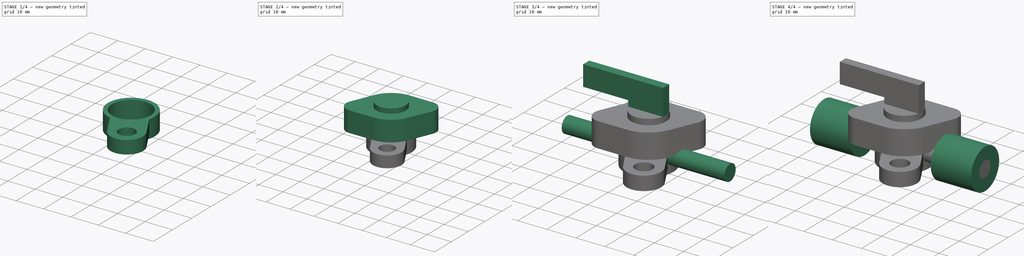
[diagram: build sequence overview — one tinted view per stage of 4, left to right]
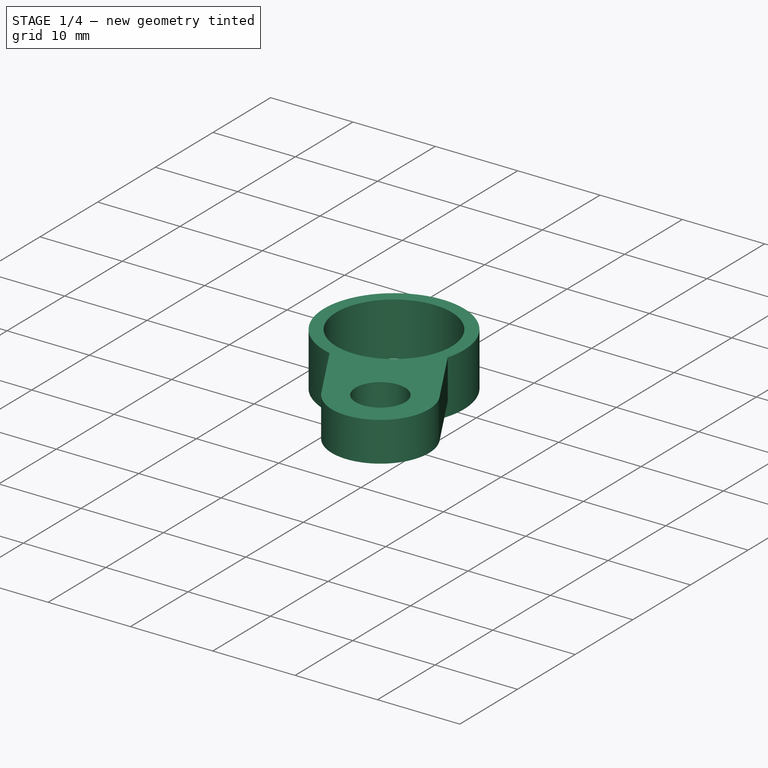
[diagram: stage 1 of 4 — iso view after this stage's code; geometry added in this stage tinted green]
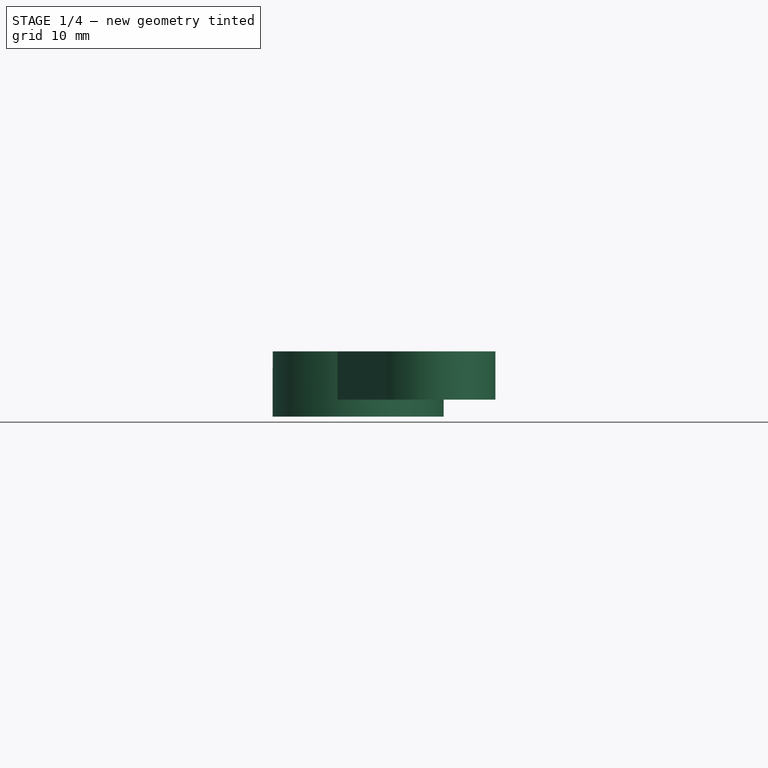
[diagram: stage 1 of 4 — front view after this stage's code; geometry added in this stage tinted green]
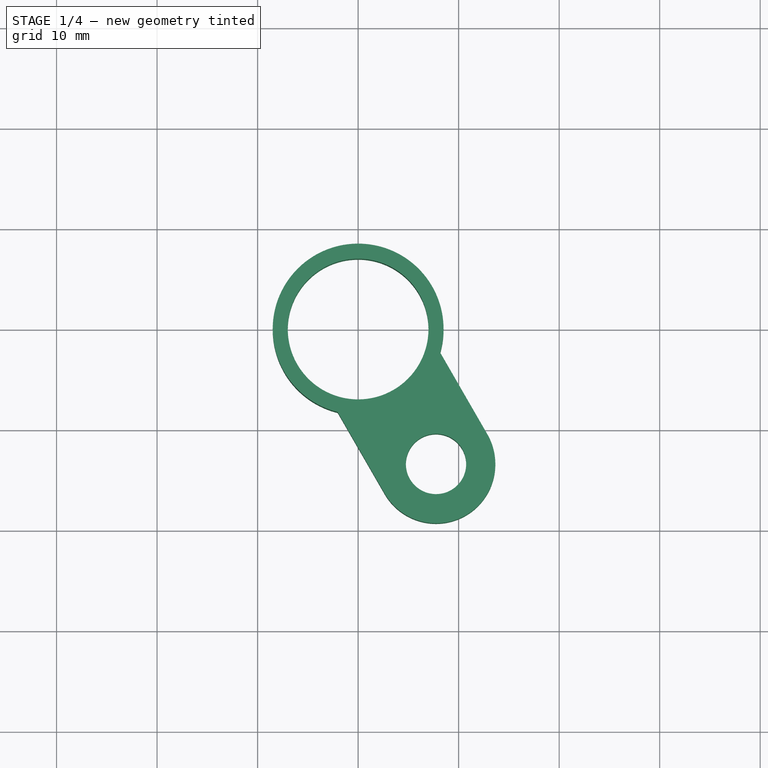
[diagram: stage 1 of 4 — top view after this stage's code; geometry added in this stage tinted green]
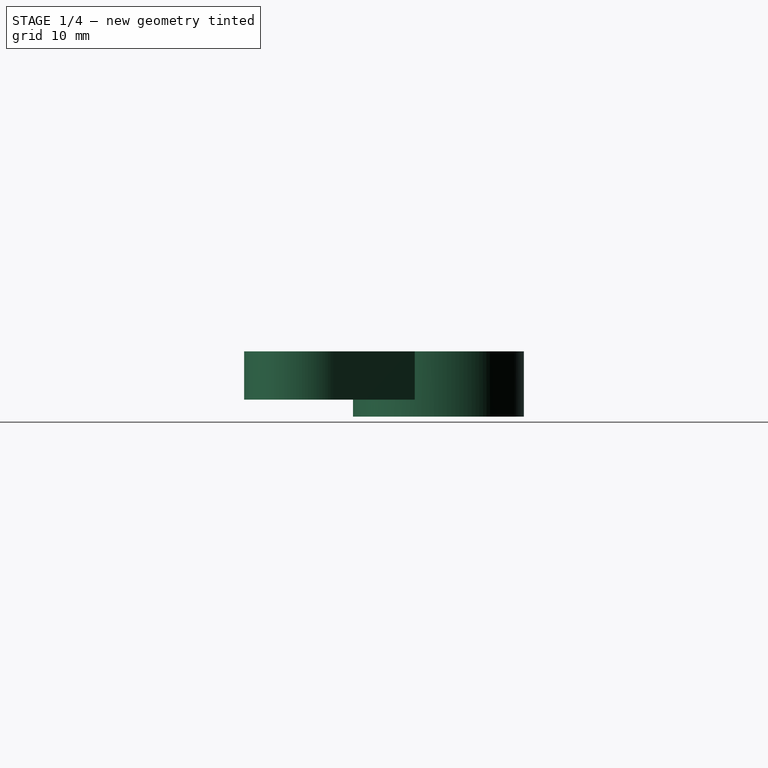
[diagram: stage 1 of 4 — right view after this stage's code; geometry added in this stage tinted green]
FCSTD DOCUMENT  (FreeCAD 0.19R24276 (Git))
Label: Ventil
License: All rights reserved
LicenseURL: http://en.wikipedia.org/wiki/All_rights_reserved
objects: Sketcher::SketchObject×9, PartDesign::Pad×9, PartDesign::Body×1
note: 28 computed .brp shape members not serialized (recipe doc carries the construction recipe); baked Part::Feature solids carry a one-line shape summary decoded from their .brp

FEATURE [Sketcher::SketchObject] Sketch
  FullyConstrained = false
  MapMode = 5
  Support = -> [XY_Plane]
  sketch-geometry (8):
    g0: LineSegment StartX=-32.5899 StartY=10.75 StartZ=0 EndX=34.986 EndY=10.75 EndZ=0
    g1: LineSegment StartX=34.986 StartY=10.75 StartZ=0 EndX=34.986 EndY=-10.75 EndZ=0
    g2: LineSegment StartX=34.986 StartY=-10.75 StartZ=0 EndX=-32.5899 EndY=-10.75 EndZ=0
    g3: LineSegment StartX=-32.5899 StartY=-10.75 StartZ=0 EndX=-32.5899 EndY=10.75 EndZ=0
    g4: LineSegment StartX=0 StartY=0 StartZ=0 EndX=-32.5899 EndY=0 EndZ=0
    g5: LineSegment StartX=0 StartY=0 StartZ=0 EndX=17.753 EndY=-30.749 EndZ=0
    g6: Circle CenterX=0 CenterY=0 CenterZ=0 NormalX=0 NormalY=0 NormalZ=1 AngleXU=0 Radius=8.5
    g7: Circle CenterX=0 CenterY=0 CenterZ=0 NormalX=0 NormalY=0 NormalZ=1 AngleXU=0 Radius=7
  constraints (18):
    c: Coincident(g0,g1)
    c: Coincident(g1,g2)
    c: Coincident(g2,g3)
    c: Coincident(g3,g0)
    c: Horizontal(g0)
    c: Horizontal(g2)
    c: Vertical(g1)
    c: Vertical(g3)
    c: Coincident(g4,g-1)
    c: PointOnObject(g4,g-1)
    c: DistanceY(g2,g0) = 21.5
    c: Symmetric(g2,g0,g4)
    c: Coincident(g5,g-1)
    c: Angle(g5,g-1) = 1.0472
    c: Coincident(g6,g-1)
    c: Diameter(g6) = 17
    c: Coincident(g7,g6)
    c: Diameter(g7) = 14
FEATURE [PartDesign::Pad] Pad
  Direction = (1,1,1)
  Length = 6.5
  Length2 = 100
  Profile = -> Sketch
  Type = 0
FEATURE [Sketcher::SketchObject] Sketch001
  FullyConstrained = true
  MapMode = 5
  Placement = pos=(0,0,6.5) rot=(0,0,1;0rad)
  Support = -> [Pad]
  sketch-geometry (6):
    g0: LineSegment StartX=0 StartY=0 StartZ=0 EndX=7.75 EndY=-13.4234 EndZ=0
    g1: Circle CenterX=7.75 CenterY=-13.4234 CenterZ=0 NormalX=0 NormalY=0 NormalZ=1 AngleXU=0 Radius=3
    g2: ArcOfCircle CenterX=7.75 CenterY=-13.4234 CenterZ=0 NormalX=0 NormalY=0 NormalZ=1 AngleXU=0 Radius=5.9 StartAngle=3.66519 EndAngle=6.80678
    g3: LineSegment StartX=2.64045 StartY=-16.3734 StartZ=0 EndX=-2.05014 EndY=-8.24906 EndZ=0
    g4: LineSegment StartX=12.8595 StartY=-10.4734 StartZ=0 EndX=8.16896 EndY=-2.34906 EndZ=0
    g5: ArcOfCircle CenterX=0 CenterY=0 CenterZ=0 NormalX=0 NormalY=0 NormalZ=1 AngleXU=0 Radius=8.5 StartAngle=4.46879 EndAngle=6.00318
  constraints (15):
    c: Coincident(g0,g-1)
    c: Angle(g0,g-1) = 1.0472
    c: Distance(g0) = 15.5
    c: Coincident(g1,g0)
    c: Diameter(g1) = 6
    c: Coincident(g2,g1)
    c: Diameter(g2) = 11.8
    c: Parallel(g3,g0)
    c: Parallel(g0,g4)
    c: Tangent(g2,g3) = 1.5708
    c: Tangent(g2,g4) = -1.5708
    c: Coincident(g5,g-1)
    c: Diameter(g5) = 17
    c: Coincident(g4,g5)
    c: Coincident(g3,g5)
FEATURE [PartDesign::Pad] Pad001
  BaseFeature = -> Pad
  Direction = (1,1,1)
  Length = 4.8
  Length2 = 100
  Profile = -> Sketch001
  Reversed = true
  Type = 0
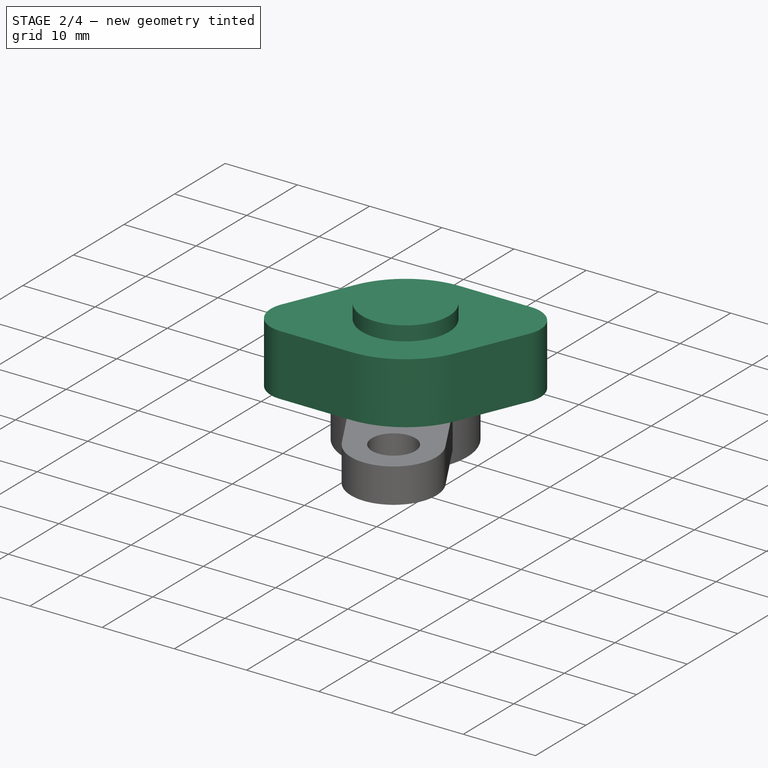
[diagram: stage 2 of 4 — iso view after this stage's code; geometry added in this stage tinted green]
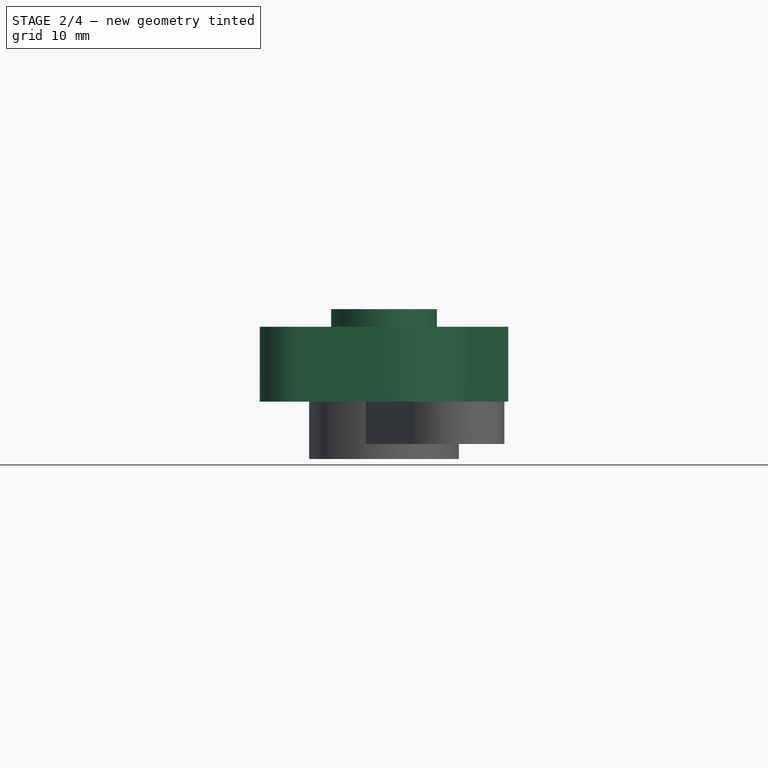
[diagram: stage 2 of 4 — front view after this stage's code; geometry added in this stage tinted green]
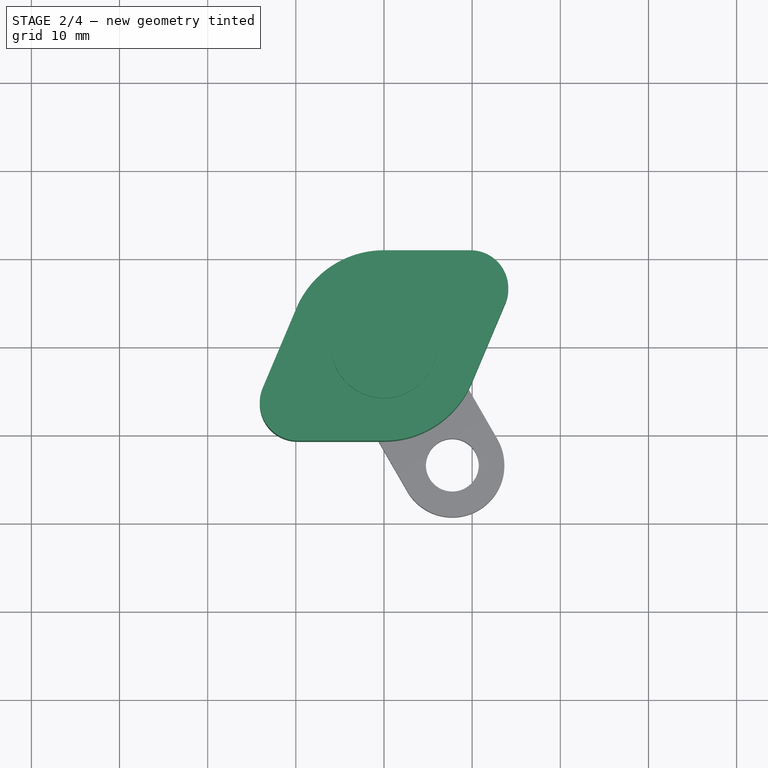
[diagram: stage 2 of 4 — top view after this stage's code; geometry added in this stage tinted green]
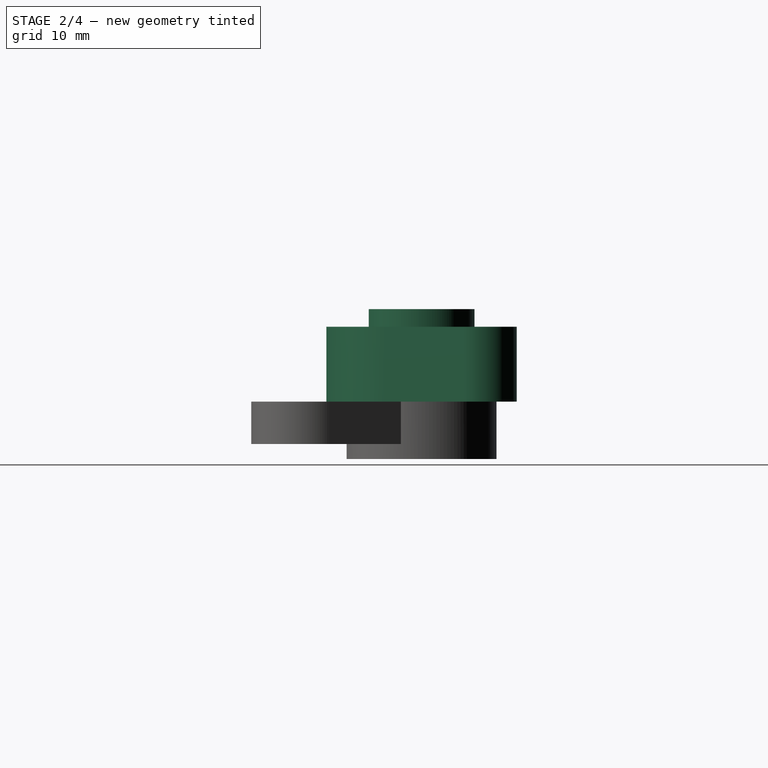
[diagram: stage 2 of 4 — right view after this stage's code; geometry added in this stage tinted green]
FEATURE [Sketcher::SketchObject] Sketch002
  FullyConstrained = false
  MapMode = 5
  Placement = pos=(0,0,6.5) rot=(0,0,1;0rad)
  Support = -> [Pad001]
  sketch-geometry (22):
    g0: LineSegment StartX=-15.0552 StartY=3.5 StartZ=0 EndX=30.8187 EndY=3.5 EndZ=0
    g1: LineSegment StartX=-26.6641 StartY=-3.5 StartZ=0 EndX=3.01353 EndY=-3.5 EndZ=0
    g2: LineSegment StartX=0 StartY=10.8 StartZ=0 EndX=9.8 EndY=10.8 EndZ=0
    g3: LineSegment StartX=0 StartY=0 StartZ=0 EndX=-13 EndY=0 EndZ=0
    g4: LineSegment StartX=0 StartY=0 StartZ=0 EndX=0 EndY=13.2768 EndZ=0
    g5: ArcOfCircle CenterX=0 CenterY=0 CenterZ=0 NormalX=0 NormalY=0 NormalZ=1 AngleXU=0 Radius=10.8 StartAngle=4.71239 EndAngle=5.88368
    g6: LineSegment StartX=-9.8 StartY=6.5 StartZ=0 EndX=9.8 EndY=6.5 EndZ=0
    g7: LineSegment StartX=9.8 StartY=6.5 StartZ=0 EndX=9.8 EndY=-6.5 EndZ=0
    g8: LineSegment StartX=9.8 StartY=-6.5 StartZ=0 EndX=-9.8 EndY=-6.5 EndZ=0
    g9: LineSegment StartX=-9.8 StartY=-6.5 StartZ=0 EndX=-9.8 EndY=6.5 EndZ=0
    g10: LineSegment StartX=9.8 StartY=6.5 StartZ=0 EndX=13.7614 EndY=4.82745 EndZ=0
    g11: LineSegment StartX=9.8 StartY=6.5 StartZ=0 EndX=9.8 EndY=10.8 EndZ=0
    g12: LineSegment StartX=-13.7614 StartY=-4.82745 StartZ=0 EndX=-9.8 EndY=-6.5 EndZ=0
    g13: LineSegment StartX=-2e-15 StartY=0 StartZ=0 EndX=-2e-15 EndY=-10.8 EndZ=0
    g14: ArcOfCircle CenterX=9.8 CenterY=6.5 CenterZ=0 NormalX=0 NormalY=0 NormalZ=1 AngleXU=0 Radius=4.3 StartAngle=5.88368 EndAngle=7.85398
    g15: ArcOfCircle CenterX=0 CenterY=0 CenterZ=0 NormalX=0 NormalY=0 NormalZ=1 AngleXU=0 Radius=10.8 StartAngle=1.5708 EndAngle=2.74208
    g16: LineSegment StartX=9.94953 StartY=-4.20082 StartZ=0 EndX=13.7614 EndY=4.82745 EndZ=0
    g17: LineSegment StartX=-9.8 StartY=-6.5 StartZ=0 EndX=-9.8 EndY=-10.8 EndZ=0
    g18: LineSegment StartX=-9.94953 StartY=4.20082 StartZ=0 EndX=-13.7614 EndY=-4.82745 EndZ=0
    g19: LineSegment StartX=0 StartY=0 StartZ=0 EndX=-9.94953 EndY=4.20082 EndZ=0
    g20: ArcOfCircle CenterX=-9.8 CenterY=-6.5 CenterZ=0 NormalX=0 NormalY=0 NormalZ=1 AngleXU=0 Radius=4.3 StartAngle=2.74208 EndAngle=4.71239
    g21: LineSegment StartX=-2e-15 StartY=-10.8 StartZ=0 EndX=-9.8 EndY=-10.8 EndZ=0
  constraints (54):
    c: Horizontal(g0)
    c: Horizontal(g1)
    c: DistanceY(g-1,g0) = 3.5
    c: DistanceY(g1,g-1) = 3.5
    c: Horizontal(g2)
    c: Coincident(g3,g-1)
    c: PointOnObject(g3,g-1)
    c: Coincident(g4,g-1)
    c: PointOnObject(g4,g-2)
    c: Coincident(g5,g-1)
    c: Diameter(g5) = 21.6
    c: Coincident(g6,g7)
    c: Coincident(g7,g8)
    c: Coincident(g8,g9)
    c: Coincident(g9,g6)
    c: Horizontal(g6)
    c: Horizontal(g8)
    c: Vertical(g7)
    c: Vertical(g9)
    c: Symmetric(g6,g7,g-1)
    c: DistanceX(g8,g8) = 19.6
    c: Coincident(g10,g6)
    c: Coincident(g11,g6)
    c: Coincident(g11,g2)
    c: Vertical(g11)
    c: Coincident(g12,g8)
    c: Coincident(g13,g-1)
    c: Vertical(g13)
    c: Coincident(g14,g2)
    c: Equal(g5,g15)
    c: Coincident(g5,g15)
    c: Coincident(g14,g6)
    c: Diameter(g14) = 8.6
    c: Coincident(g10,g14)
    c: Coincident(g16,g5)
    c: Coincident(g16,g14)
    c: Perpendicular(g10,g16)
    c: Coincident(g17,g8)
    c: Vertical(g17)
    c: DistanceY(g17,g17) = 4.3
    c: Coincident(g18,g12)
    c: Coincident(g19,g5)
    c: Coincident(g19,g18)
    c: Perpendicular(g19,g18)
    c: Coincident(g15,g18)
    c: Tangent(g20,g18) = -1.5708
    c: PointOnObject(g15,g2)
    c: PointOnObject(g2,g4)
    c: Coincident(g5,g13)
    c: Coincident(g21,g5)
    c: Coincident(g21,g20)
    c: Horizontal(g21)
    c: Coincident(g18,g20)
    c: Coincident(g20,g8)
FEATURE [PartDesign::Pad] Pad002
  BaseFeature = -> Pad001
  Direction = (1,1,1)
  Length = 8.5
  Length2 = 100
  Profile = -> Sketch002
  Type = 0
FEATURE [Sketcher::SketchObject] Sketch003
  FullyConstrained = true
  MapMode = 5
  Placement = pos=(0,0,15) rot=(0,0,1;0rad)
  Support = -> [Pad002]
  sketch-geometry (1):
    g0: Circle CenterX=0 CenterY=0 CenterZ=0 NormalX=0 NormalY=0 NormalZ=1 AngleXU=0 Radius=6
  constraints (2):
    c: Coincident(g0,g-1)
    c: Diameter(g0) = 12
FEATURE [PartDesign::Pad] Pad003
  BaseFeature = -> Pad002
  Direction = (1,1,1)
  Length = 2
  Length2 = 100
  Profile = -> Sketch003
  Type = 0
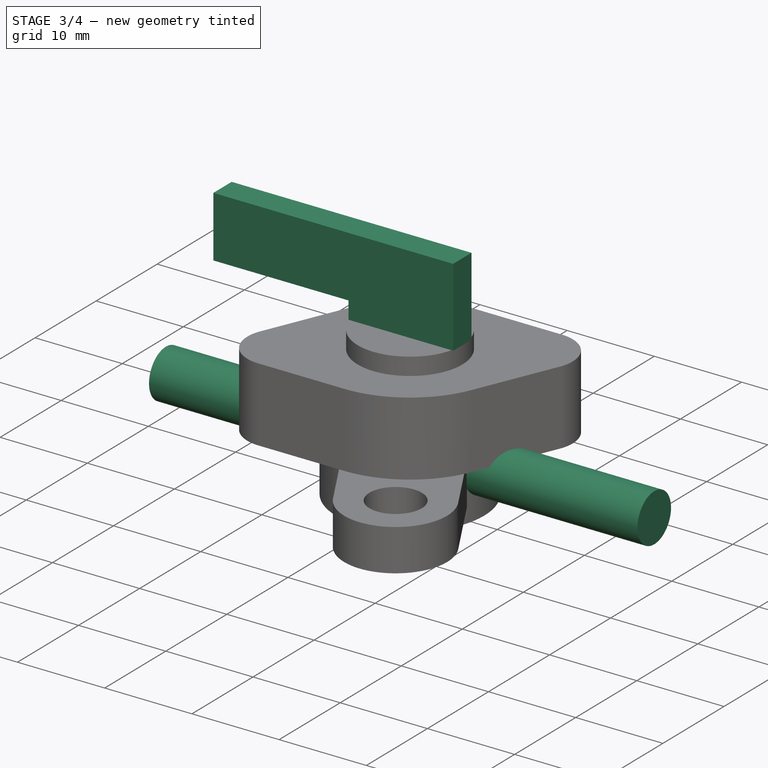
[diagram: stage 3 of 4 — iso view after this stage's code; geometry added in this stage tinted green]
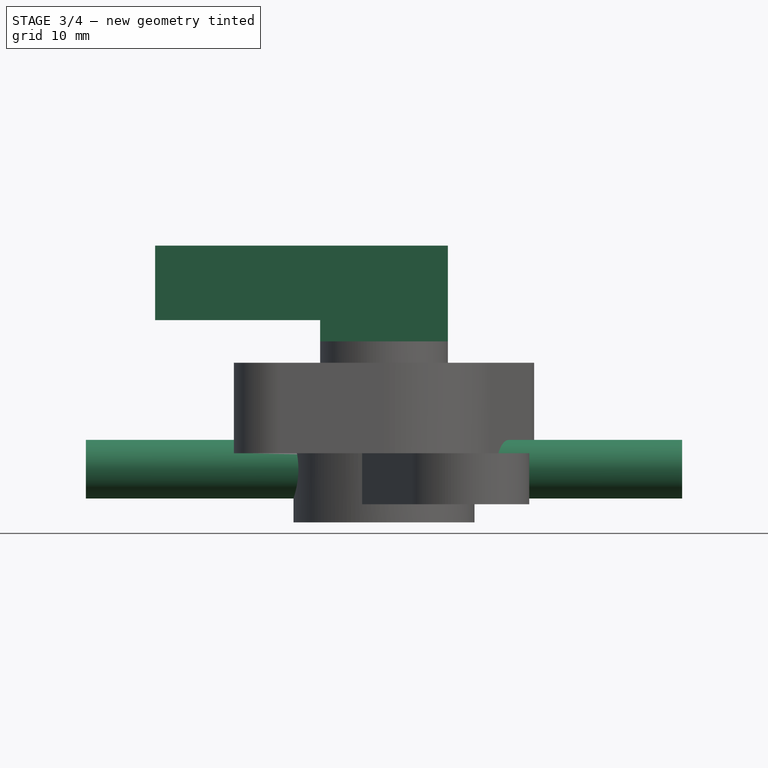
[diagram: stage 3 of 4 — front view after this stage's code; geometry added in this stage tinted green]
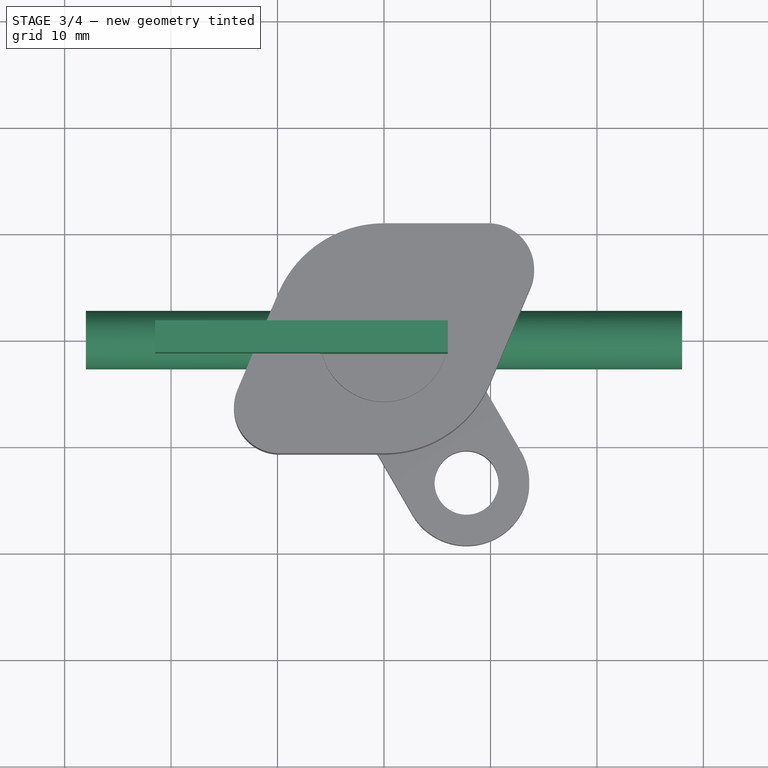
[diagram: stage 3 of 4 — top view after this stage's code; geometry added in this stage tinted green]
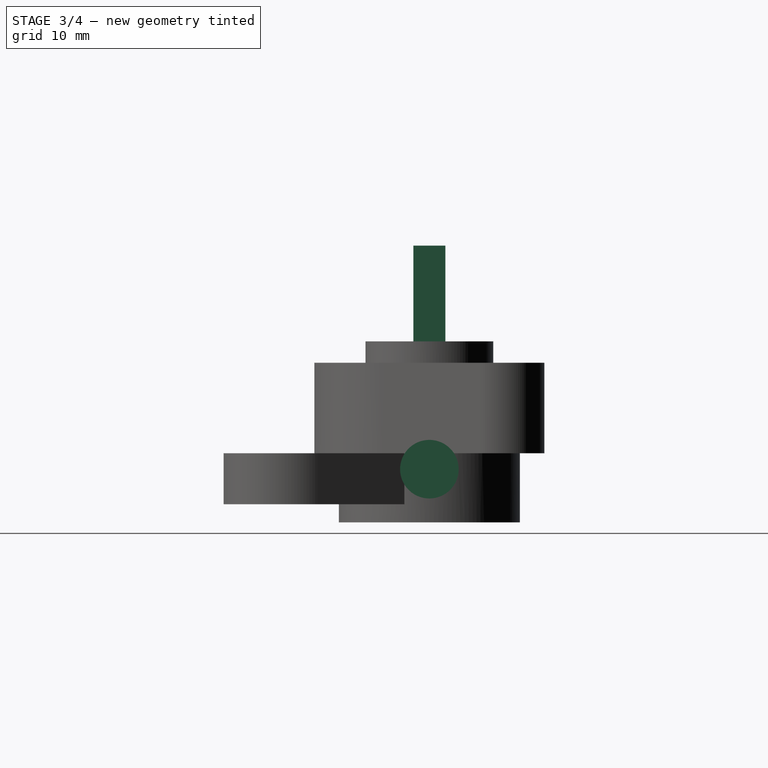
[diagram: stage 3 of 4 — right view after this stage's code; geometry added in this stage tinted green]
FEATURE [Sketcher::SketchObject] Sketch004
  FullyConstrained = true
  MapMode = 5
  Placement = pos=(0,0,17) rot=(0,0,1;0rad)
  Support = -> [Pad003]
  sketch-geometry (4):
    g0: LineSegment StartX=-6 StartY=1.5 StartZ=0 EndX=6 EndY=1.5 EndZ=0
    g1: LineSegment StartX=6 StartY=1.5 StartZ=0 EndX=6 EndY=-1.5 EndZ=0
    g2: LineSegment StartX=6 StartY=-1.5 StartZ=0 EndX=-6 EndY=-1.5 EndZ=0
    g3: LineSegment StartX=-6 StartY=-1.5 StartZ=0 EndX=-6 EndY=1.5 EndZ=0
  constraints (11):
    c: Coincident(g0,g1)
    c: Coincident(g1,g2)
    c: Coincident(g2,g3)
    c: Coincident(g3,g0)
    c: Horizontal(g0)
    c: Horizontal(g2)
    c: Vertical(g1)
    c: Vertical(g3)
    c: DistanceY(g3,g3) = 3
    c: Symmetric(g0,g1,g-1)
    c: DistanceX(g2,g2) = 12
FEATURE [PartDesign::Pad] Pad004
  BaseFeature = -> Pad003
  Direction = (1,1,1)
  Length = 2
  Length2 = 100
  Profile = -> Sketch004
  Type = 0
FEATURE [Sketcher::SketchObject] Sketch005
  FullyConstrained = true
  MapMode = 5
  Placement = pos=(0,0,19) rot=(0,0,1;0rad)
  Support = -> [Pad004]
  sketch-geometry (5):
    g0: LineSegment StartX=-21.5 StartY=1.5 StartZ=0 EndX=6 EndY=1.5 EndZ=0
    g1: LineSegment StartX=6 StartY=1.5 StartZ=0 EndX=6 EndY=-1.5 EndZ=0
    g2: LineSegment StartX=6 StartY=-1.5 StartZ=0 EndX=-21.5 EndY=-1.5 EndZ=0
    g3: LineSegment StartX=-21.5 StartY=-1.5 StartZ=0 EndX=-21.5 EndY=1.5 EndZ=0
    g4: LineSegment StartX=0 StartY=0 StartZ=0 EndX=6 EndY=0 EndZ=0
  constraints (14):
    c: Coincident(g0,g1)
    c: Coincident(g1,g2)
    c: Coincident(g2,g3)
    c: Coincident(g3,g0)
    c: Horizontal(g0)
    c: Horizontal(g2)
    c: Vertical(g1)
    c: Vertical(g3)
    c: Coincident(g4,g-1)
    c: PointOnObject(g4,g-1)
    c: Symmetric(g0,g1,g4)
    c: DistanceX(g-1,g1) = 6
    c: DistanceX(g2,g1) = 27.5
    c: DistanceY(g3,g3) = 3
FEATURE [PartDesign::Pad] Pad005
  BaseFeature = -> Pad004
  Direction = (1,1,1)
  Length = 7
  Length2 = 100
  Profile = -> Sketch005
  Type = 0
FEATURE [Sketcher::SketchObject] Sketch006
  FullyConstrained = true
  MapMode = 5
  Placement = pos=(0,0,0) rot=(0.57735,0.57735,0.57735;2.0944rad)
  Support = -> [YZ_Plane]
  sketch-geometry (1):
    g0: Circle CenterX=0 CenterY=5 CenterZ=0 NormalX=0 NormalY=0 NormalZ=1 AngleXU=0 Radius=2.75
  constraints (3):
    c: PointOnObject(g0,g-2)
    c: Diameter(g0) = 5.5
    c: DistanceY(g-1,g0) = 5
FEATURE [PartDesign::Pad] Pad006
  BaseFeature = -> Pad005
  Direction = (1,1,1)
  Length = 56
  Length2 = 100
  Midplane = true
  Profile = -> Sketch006
  Type = 0
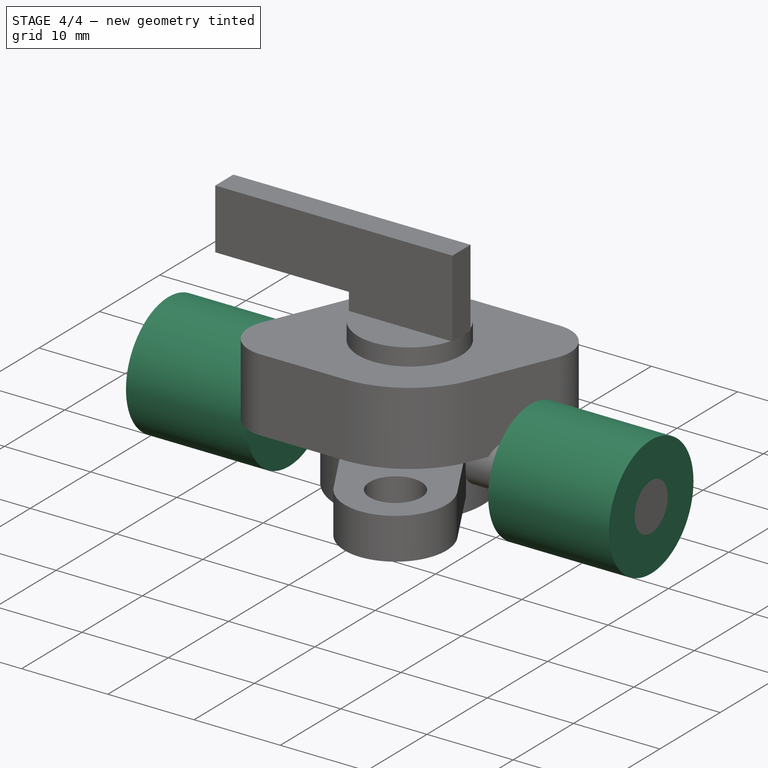
[diagram: stage 4 of 4 — iso view after this stage's code; geometry added in this stage tinted green]
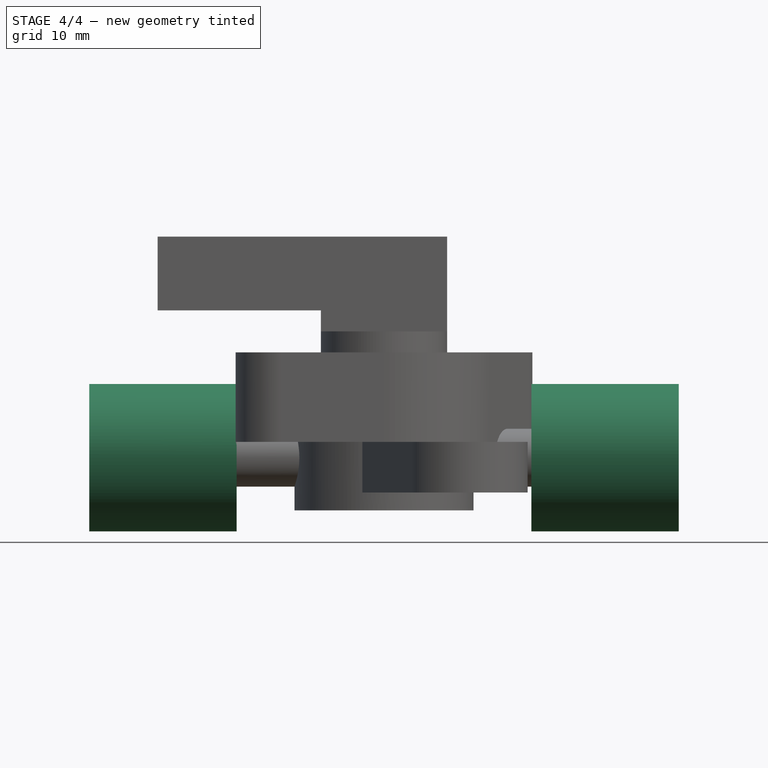
[diagram: stage 4 of 4 — front view after this stage's code; geometry added in this stage tinted green]
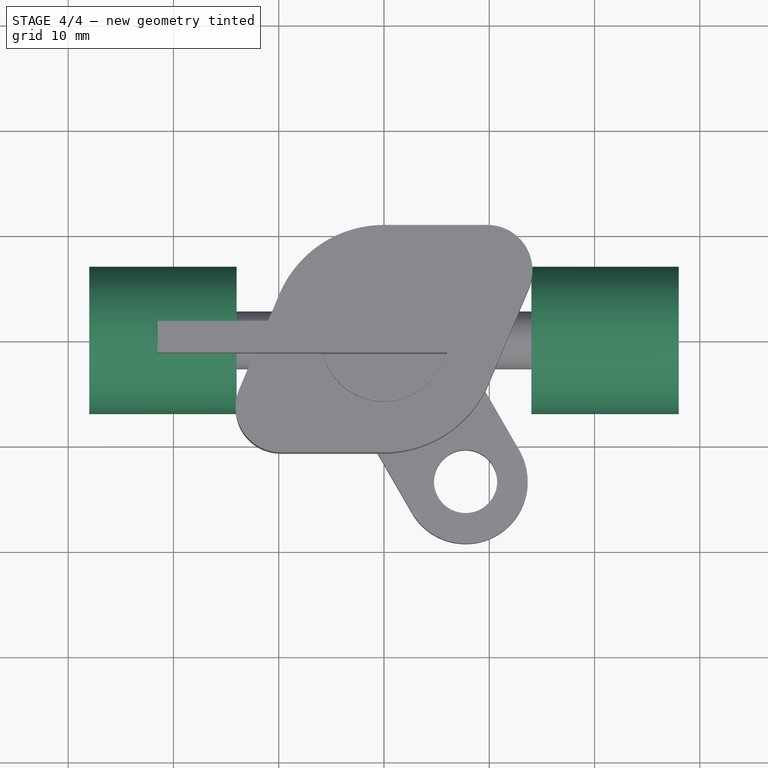
[diagram: stage 4 of 4 — top view after this stage's code; geometry added in this stage tinted green]
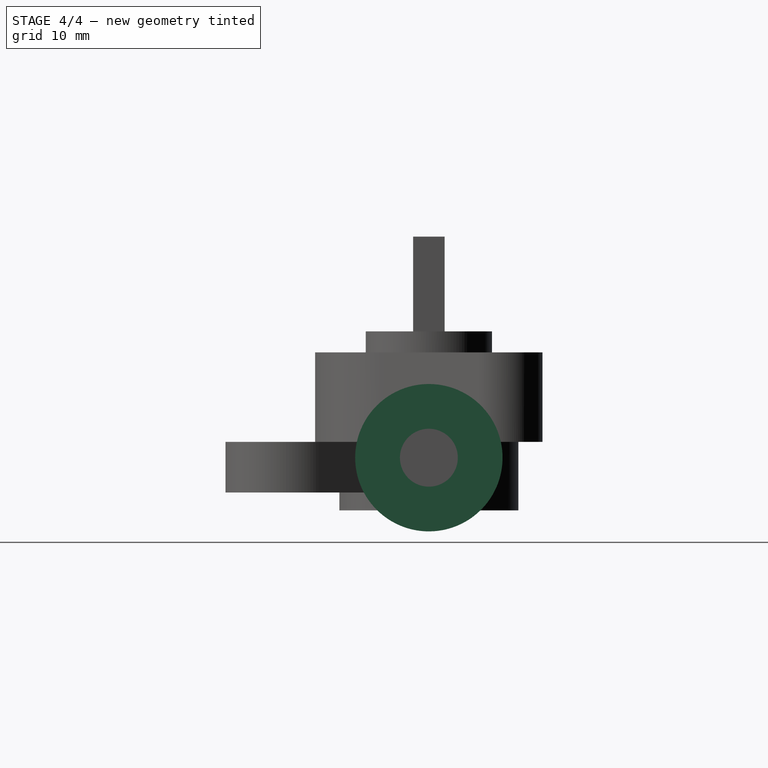
[diagram: stage 4 of 4 — right view after this stage's code; geometry added in this stage tinted green]
FEATURE [Sketcher::SketchObject] Sketch007
  FullyConstrained = true
  MapMode = 5
  Placement = pos=(28,-6.2e-15,6.2e-15) rot=(0.57735,0.57735,0.57735;2.0944rad)
  Support = -> [Pad006]
  sketch-geometry (1):
    g0: Circle CenterX=0 CenterY=5 CenterZ=0 NormalX=0 NormalY=0 NormalZ=1 AngleXU=0 Radius=7
  constraints (3):
    c: PointOnObject(g0,g-2)
    c: DistanceY(g-1,g0) = 5
    c: Diameter(g0) = 14
FEATURE [PartDesign::Pad] Pad007
  BaseFeature = -> Pad006
  Direction = (1,1,1)
  Length = 14
  Length2 = 100
  Profile = -> Sketch007
  Reversed = true
  Type = 0
FEATURE [Sketcher::SketchObject] Sketch008
  FullyConstrained = true
  MapMode = 5
  Placement = pos=(-28,6.2e-15,-6.2e-15) rot=(-0.57735,0.57735,0.57735;4.18879rad)
  Support = -> [Pad007]
  sketch-geometry (1):
    g0: Circle CenterX=0 CenterY=5 CenterZ=0 NormalX=0 NormalY=0 NormalZ=1 AngleXU=0 Radius=7
  constraints (3):
    c: PointOnObject(g0,g-2)
    c: Diameter(g0) = 14
    c: DistanceY(g-1,g0) = 5
FEATURE [PartDesign::Pad] Pad008
  BaseFeature = -> Pad007
  Direction = (1,1,1)
  Length = 14
  Length2 = 100
  Profile = -> Sketch008
  Reversed = true
  Type = 0
FEATURE [PartDesign::Body] Body
  Group = -> [Sketch,Pad,Sketch001,Pad001,Sketch002,Pad002,Sketch003,Pad003,Sketch004,Pad004,Sketch005,Pad005,Sketch006,Pad006,Sketch007,Pad007,Sketch008,Pad008]
  Origin = -> Origin
  Tip = -> Pad008
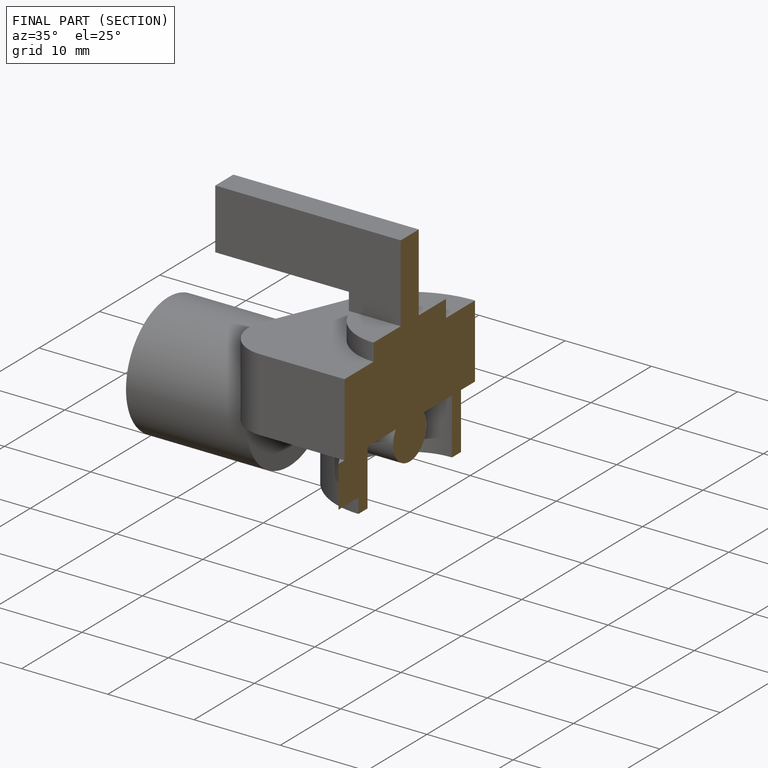
[diagram: finished part — half-section view (interior)]
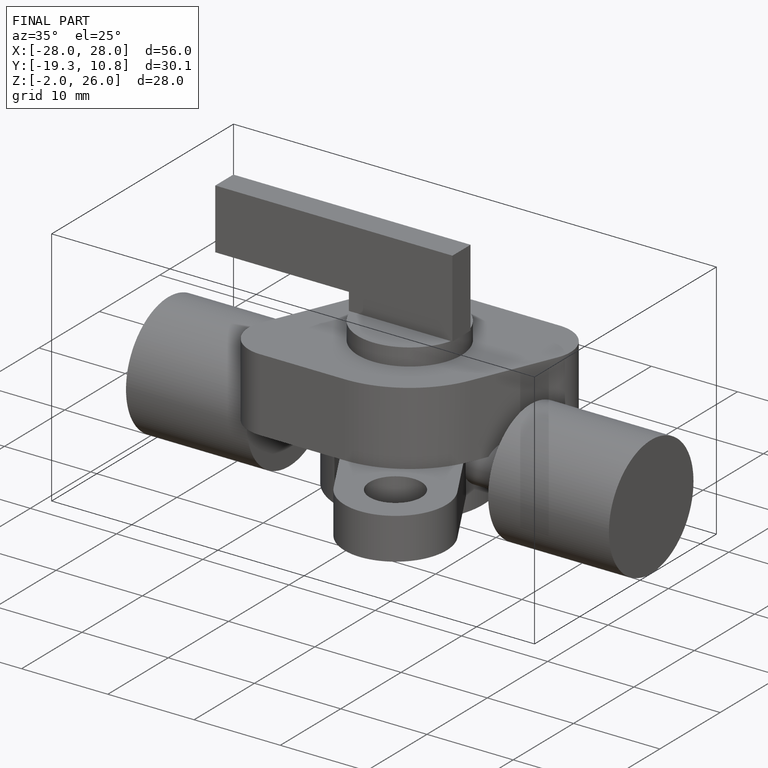
[diagram: finished part — iso view with bounding-box wireframe]
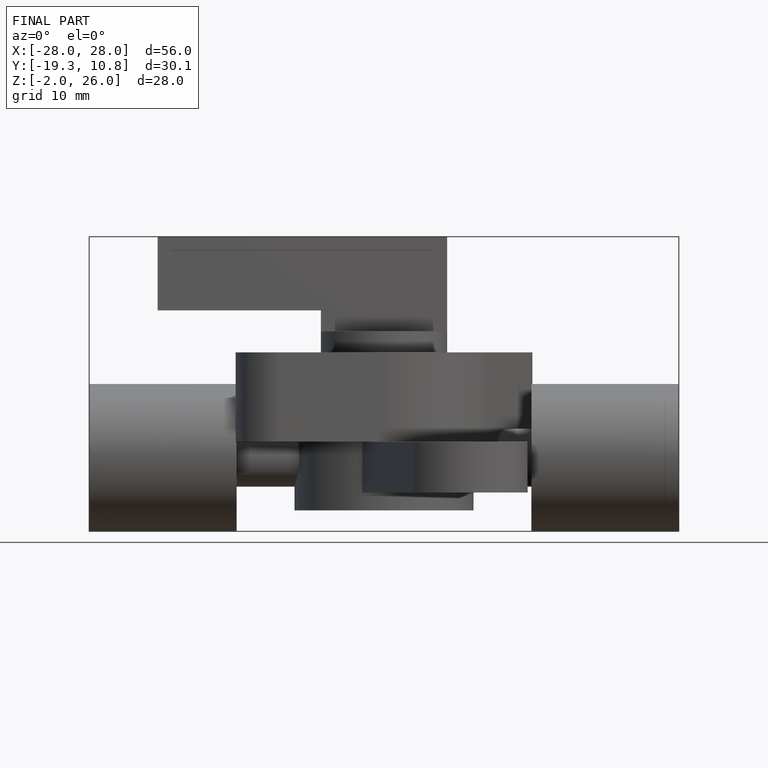
[diagram: finished part — front view with bounding-box wireframe]
